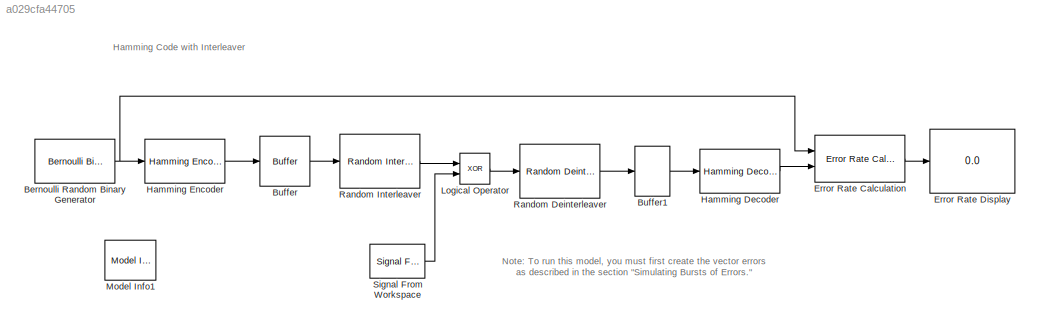
MODEL slx_a029cfa44705
KIND model
BLOCK [Reference] Bernoulli Random Binary Generator  REF=commrandsrc2/Bernoulli Binary
Generator
  P = 0.5
  Ports = [0, 1]
  SourceBlock = commrandsrc2/Bernoulli Binary\nGenerator
  SourceType = Bernoulli Binary Generator
  Ts = 1
  frameBased = on
  orient = off
  outDataType = double
  sampPerFrame = 4
  seed = 435345
BLOCK [Buffer] Buffer
  N = 84
  TreatMby1Signals = One channel
BLOCK [Buffer] Buffer1
  N = 7
  TreatMby1Signals = One channel
BLOCK [Reference] Error Rate Calculation  REF=commsink2/Error Rate
Calculation
  N = (4/7)*84
  PMode = Port
  Ports = [2, 1]
  RsMode2 = off
  SourceBlock = commsink2/Error Rate\nCalculation
  SourceType = Error Rate Calculation
  WsName = ErrorVec
  cp_mode = Entire frame
  maxBits = 1000
  numErr = 100
  st_delay = 100
  stop = off
  subframe = []
BLOCK [Display] Error Rate Display
  Decimation = 1
  Ports = [1]
BLOCK [Reference] Hamming Decoder  REF=commblkcod2/Hamming Decoder
  Ports = [1, 1]
  SourceBlock = commblkcod2/Hamming Decoder
  SourceType = Hamming Decoder
  k = gfprimfd(3,'min')
  n = 7
BLOCK [Reference] Hamming Encoder  REF=commblkcod2/Hamming Encoder
  Ports = [1, 1]
  SourceBlock = commblkcod2/Hamming Encoder
  SourceType = Hamming Encoder
  k = gfprimfd(3,'min')
  n = 7
BLOCK [Logic] Logical Operator
  Operator = XOR
  Ports = [2, 1]
BLOCK [Reference] Model Info1  REF=simulink/Model-Wide
Utilities/Model Info
  BlockCM = None
  DisplayStringWithTags = Info
  Frame = on
  HorizontalTextAlignment = Center
  InitialBlockCM = None
  LeftAlignmentValue = 0.5
  MaskDisplayString = Info
  Ports = []
  SourceBlock = simulink/Model-Wide\nUtilities/Model Info
  SourceBlockDiagram = doc_interleaver
  SourceType = CMBlock
  TagMaxNumber = 20
BLOCK [Reference] Random Deinterleaver  REF=commblkintrlv2/Random
Deinterleaver
  N = 84
  Ports = [1, 1]
  SourceBlock = commblkintrlv2/Random\nDeinterleaver
  SourceType = Random Deinterleaver
  seed = 113
BLOCK [Reference] Random Interleaver  REF=commblkintrlv2/Random
Interleaver
  N = 84
  Ports = [1, 1]
  SourceBlock = commblkintrlv2/Random\nInterleaver
  SourceType = Random Interleaver
  seed = 113
BLOCK [Reference] Signal From Workspace  REF=dspsrcs4/Signal From
Workspace
  OutputAfterFinalValue = Setting to zero
  Ports = [0, 1]
  SourceBlock = dspsrcs4/Signal From\nWorkspace
  SourceType = Signal From Workspace
  Ts = 4/7
  X = errors
  ignoreOrWarnInputAndFrameLengths = off
  nsamps = 84
ANNOTATION (root): Hamming Code with Interleaver
ANNOTATION (root): Note: To run this model, you must first create the vector errors as described in the section "Simulating Bursts of Errors."
NET Bernoulli Random Binary Generator:1 -> Error Rate Calculation:1, Hamming Encoder:1
LINE Buffer1:1 -> Hamming Decoder:1
LINE Buffer:1 -> Random Interleaver:1
LINE Error Rate Calculation:1 -> Error Rate Display:1
LINE Hamming Decoder:1 -> Error Rate Calculation:2
LINE Hamming Encoder:1 -> Buffer:1
LINE Logical Operator:1 -> Random Deinterleaver:1
LINE Random Deinterleaver:1 -> Buffer1:1
LINE Random Interleaver:1 -> Logical Operator:1
LINE Signal From Workspace:1 -> Logical Operator:2
note: NET lines group one-source signal fan-out (src -> all destinations, sorted); 1:1 wires keep LINE
